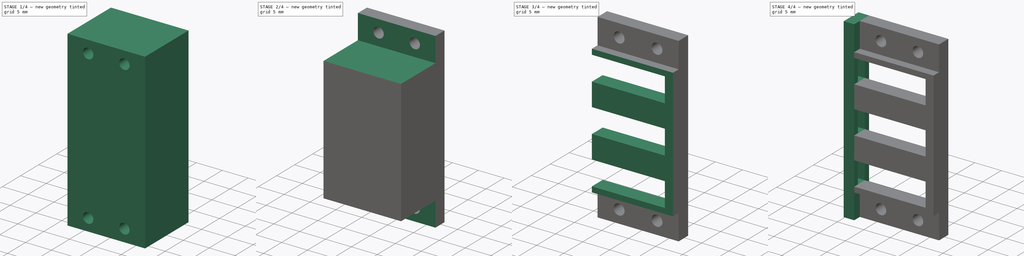
[diagram: build sequence overview — one tinted view per stage of 4, left to right]
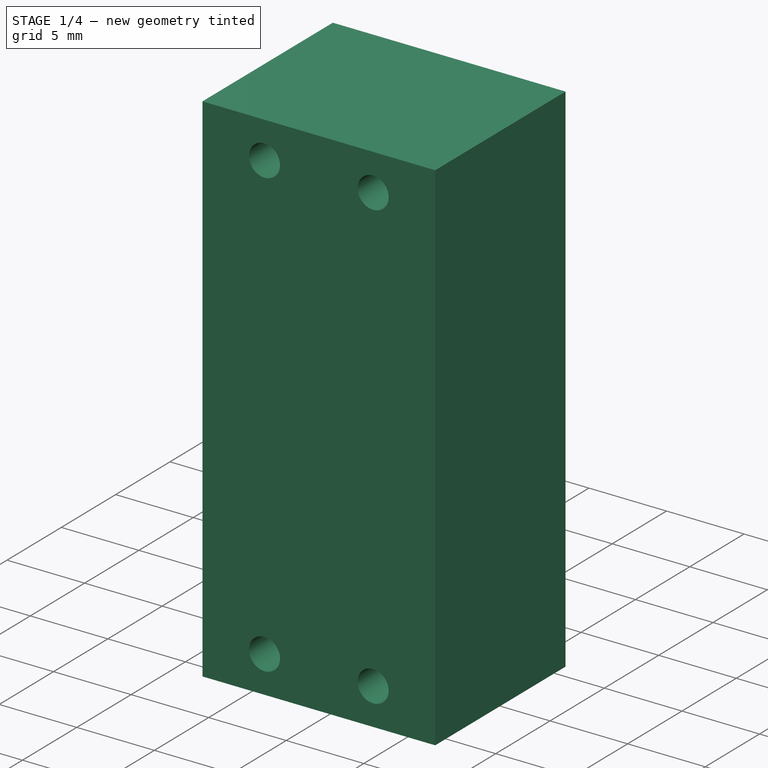
[diagram: stage 1 of 4 — iso view after this stage's code; geometry added in this stage tinted green]
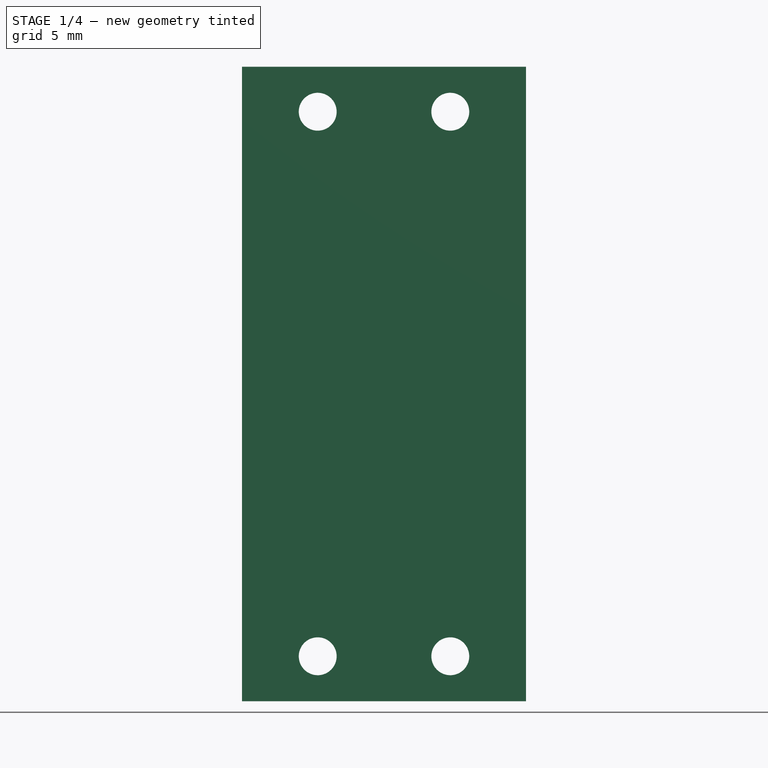
[diagram: stage 1 of 4 — front view after this stage's code; geometry added in this stage tinted green]
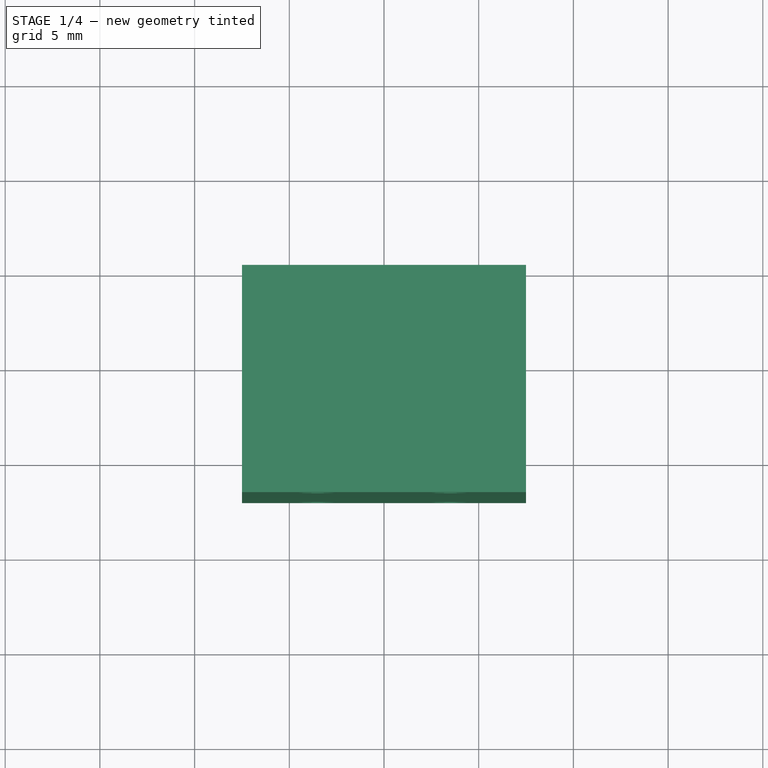
[diagram: stage 1 of 4 — top view after this stage's code; geometry added in this stage tinted green]
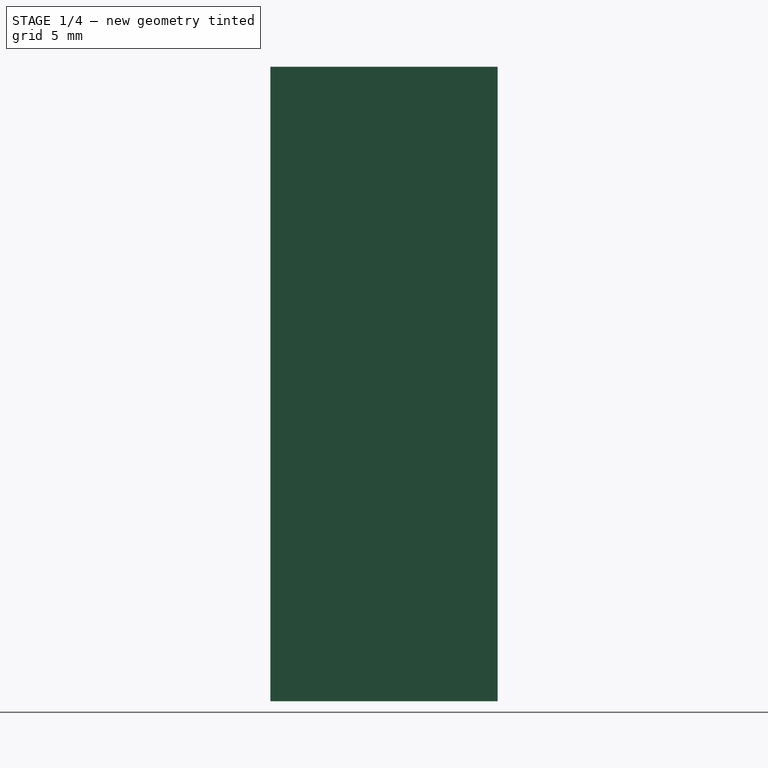
[diagram: stage 1 of 4 — right view after this stage's code; geometry added in this stage tinted green]
FCSTD DOCUMENT  (FreeCAD 0.21R33668 +26 (Git))
Label: cover_gripper
License: All rights reserved
LicenseURL: https://en.wikipedia.org/wiki/All_rights_reserved
objects: Sketcher::SketchObject×10, PartDesign::Pocket×8, PartDesign::Pad×2, PartDesign::Body×1
note: 31 computed .brp shape members not serialized (recipe doc carries the construction recipe); baked Part::Feature solids carry a one-line shape summary decoded from their .brp

FEATURE [Sketcher::SketchObject] Sketch
  FullyConstrained = true
  MapMode = 5
  Placement = pos=(0,0,0) rot=(1,0,0;1.5708rad)
  Support = -> [XZ_Plane]
  sketch-geometry (5):
    g0: LineSegment StartX=-7.5 StartY=16.75 StartZ=0 EndX=-7.5 EndY=-16.75 EndZ=0
    g1: LineSegment StartX=-7.5 StartY=-16.75 StartZ=0 EndX=7.5 EndY=-16.75 EndZ=0
    g2: LineSegment StartX=7.5 StartY=-16.75 StartZ=0 EndX=7.5 EndY=16.75 EndZ=0
    g3: LineSegment StartX=7.5 StartY=16.75 StartZ=0 EndX=-7.5 EndY=16.75 EndZ=0
    g4: GeomPoint X=0 Y=0 Z=0
  constraints (12):
    c: Coincident(g0,g1)
    c: Coincident(g1,g2)
    c: Coincident(g2,g3)
    c: Coincident(g3,g0)
    c: Horizontal(g1)
    c: Horizontal(g3)
    c: Vertical(g0)
    c: Vertical(g2)
    c: Symmetric(g1,g0,g4)
    c: Coincident(g4,g-1)
    c: DistanceX(g3,g3) = 15
    c: DistanceY(g0,g0) = 33.5
FEATURE [PartDesign::Pad] Pad
  Direction = (0,-1,2e-16)
  Length = 12
  Length2 = 10
  Placement = pos=(0,0,0) rot=(1,0,0;1.5708rad)
  Profile = -> Sketch
  ReferenceAxis = -> Sketch [N_Axis]
  Type = 0
FEATURE [Sketcher::SketchObject] Sketch001
  FullyConstrained = true
  MapMode = 5
  Placement = pos=(0,-12,2.7e-15) rot=(1,0,0;1.5708rad)
  Support = -> [Pad]
  sketch-geometry (4):
    g0: Circle CenterX=-3.5 CenterY=14.375 CenterZ=0 NormalX=0 NormalY=0 NormalZ=1 AngleXU=0 Radius=1
    g1: Circle CenterX=3.5 CenterY=14.375 CenterZ=0 NormalX=0 NormalY=0 NormalZ=1 AngleXU=0 Radius=1
    g2: Circle CenterX=-3.5 CenterY=-14.375 CenterZ=0 NormalX=0 NormalY=0 NormalZ=1 AngleXU=0 Radius=1
    g3: Circle CenterX=3.5 CenterY=-14.375 CenterZ=0 NormalX=0 NormalY=0 NormalZ=1 AngleXU=0 Radius=1
  constraints (12):
    c: Vertical(g0,g2)
    c: Vertical(g3,g1)
    c: Horizontal(g0,g1)
    c: Horizontal(g2,g3)
    c: Diameter(g1) = 2
    c: DistanceX(g0,g1) = 7
    c: DistanceX(g-1,g1) = 3.5
    c: Equal(g0,g1)
    c: Equal(g2,g0)
    c: Equal(g3,g1)
    c: DistanceY(g-1,g1) = 14.375
    c: DistanceY(g3,g1) = 28.75
FEATURE [PartDesign::Pocket] Pocket
  BaseFeature = -> Pad
  Direction = (0,1,-2e-16)
  Length = 5
  Length2 = 5
  Placement = pos=(0,0,0) rot=(1,0,0;1.5708rad)
  Profile = -> Sketch001
  ReferenceAxis = -> Sketch001 [N_Axis]
  Type = 1
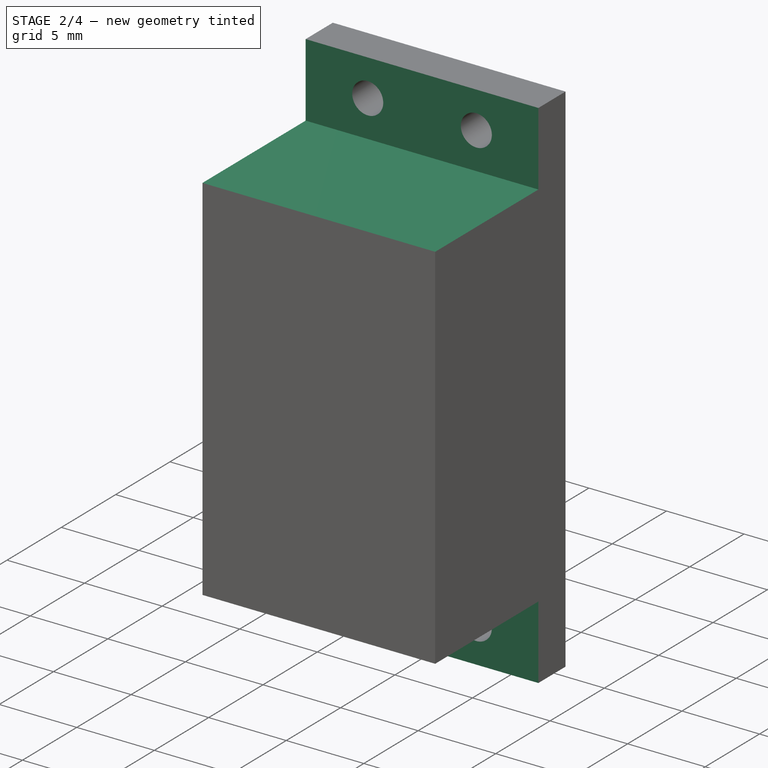
[diagram: stage 2 of 4 — iso view after this stage's code; geometry added in this stage tinted green]
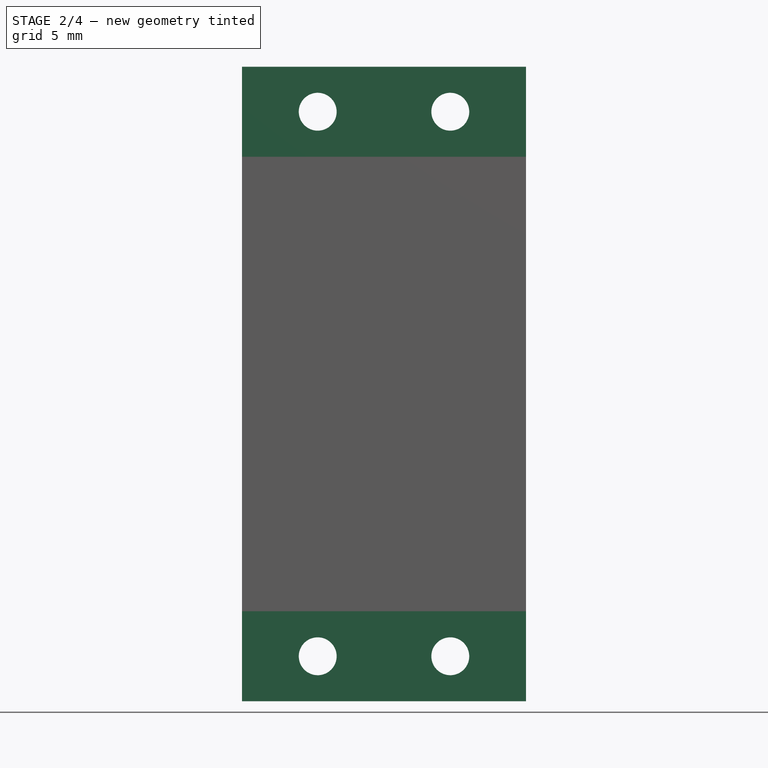
[diagram: stage 2 of 4 — front view after this stage's code; geometry added in this stage tinted green]
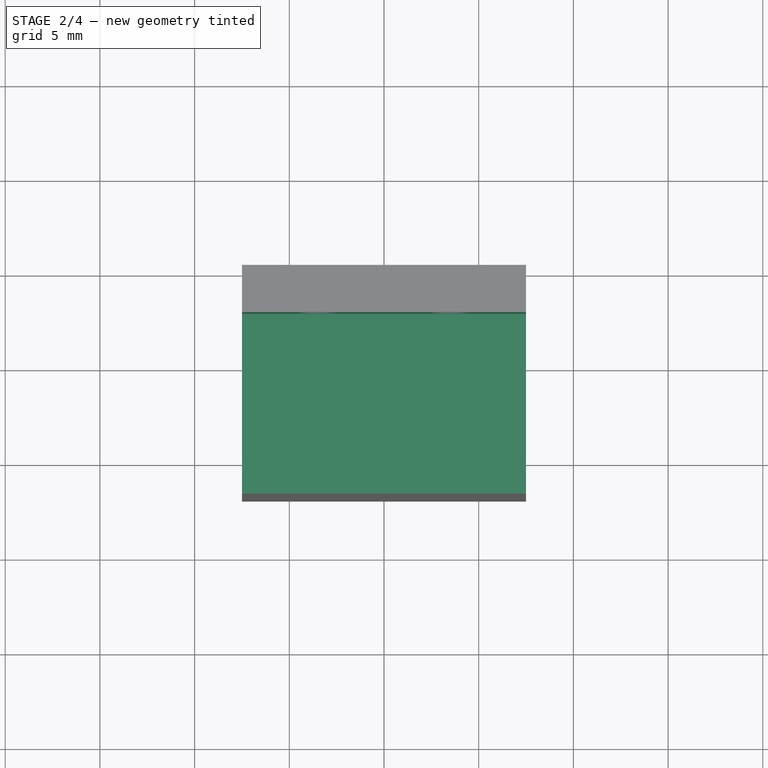
[diagram: stage 2 of 4 — top view after this stage's code; geometry added in this stage tinted green]
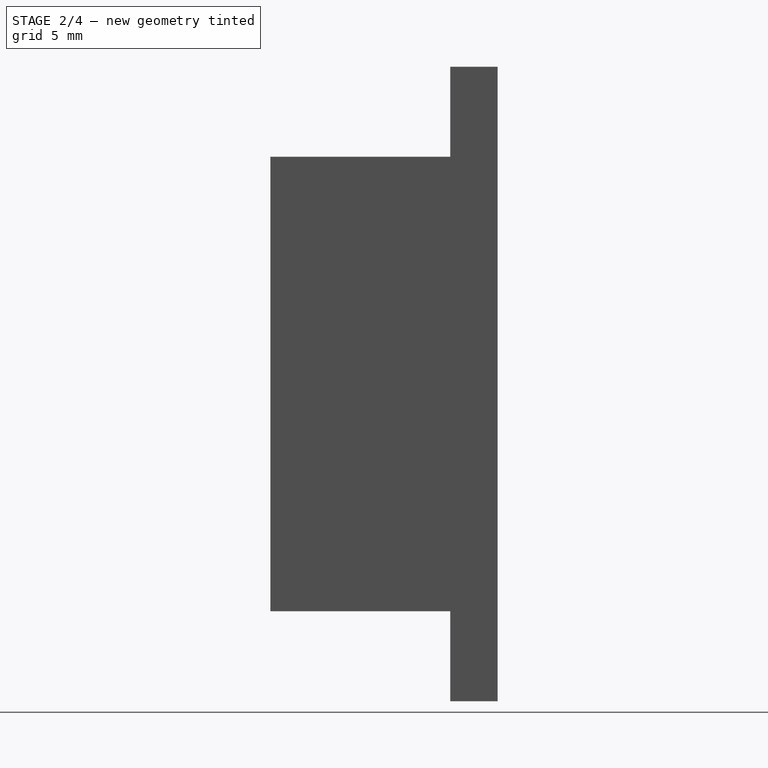
[diagram: stage 2 of 4 — right view after this stage's code; geometry added in this stage tinted green]
FEATURE [Sketcher::SketchObject] Sketch002
  ExternalGeometry = -> [Pocket]
  FullyConstrained = false
  MapMode = 5
  Placement = pos=(0,-12,2.7e-15) rot=(1,0,0;1.5708rad)
  Support = -> [Pocket]
  sketch-geometry (8):
    g0: LineSegment StartX=-12.2622 StartY=18.1505 StartZ=0 EndX=12.6698 EndY=18.1505 EndZ=0
    g1: LineSegment StartX=12.6698 StartY=18.1505 StartZ=0 EndX=12.6698 EndY=12 EndZ=0
    g2: LineSegment StartX=12.6698 StartY=12 StartZ=0 EndX=-12.2622 EndY=12 EndZ=0
    g3: LineSegment StartX=-12.2622 StartY=12 StartZ=0 EndX=-12.2622 EndY=18.1505 EndZ=0
    g4: LineSegment StartX=-11.9341 StartY=-12 StartZ=0 EndX=13.2165 EndY=-12 EndZ=0
    g5: LineSegment StartX=13.2165 StartY=-12 StartZ=0 EndX=13.2165 EndY=-18.154 EndZ=0
    g6: LineSegment StartX=13.2165 StartY=-18.154 StartZ=0 EndX=-11.9341 EndY=-18.154 EndZ=0
    g7: LineSegment StartX=-11.9341 StartY=-18.154 StartZ=0 EndX=-11.9341 EndY=-12 EndZ=0
  constraints (18):
    c: Coincident(g0,g1)
    c: Coincident(g1,g2)
    c: Coincident(g2,g3)
    c: Coincident(g3,g0)
    c: Horizontal(g0)
    c: Horizontal(g2)
    c: Vertical(g1)
    c: Vertical(g3)
    c: DistanceY(g1,g-4) = 4.75
    c: Coincident(g4,g5)
    c: Coincident(g5,g6)
    c: Coincident(g6,g7)
    c: Coincident(g7,g4)
    c: Horizontal(g4)
    c: Horizontal(g6)
    c: Vertical(g5)
    c: Vertical(g7)
    c: DistanceY(g-5,g4) = 4.75
FEATURE [PartDesign::Pocket] Pocket001
  BaseFeature = -> Pocket
  Direction = (0,1,-2e-16)
  Length = 9.5
  Length2 = 5
  Placement = pos=(0,0,0) rot=(1,0,0;1.5708rad)
  Profile = -> Sketch002
  ReferenceAxis = -> Sketch002 [N_Axis]
  Type = 0
FEATURE [Sketcher::SketchObject] Sketch003
  ExternalGeometry = -> [Pocket001]
  FullyConstrained = false
  MapMode = 5
  Placement = pos=(0,0,0) rot=(-1,0,0;1.5708rad)
  Support = -> [Pocket001]
  sketch-geometry (4):
    g0: LineSegment StartX=-11.6287 StartY=11.25 StartZ=0 EndX=5.5 EndY=11.25 EndZ=0
    g1: LineSegment StartX=5.5 StartY=11.25 StartZ=0 EndX=5.5 EndY=-11.25 EndZ=0
    g2: LineSegment StartX=5.5 StartY=-11.25 StartZ=0 EndX=-11.6287 EndY=-11.25 EndZ=0
    g3: LineSegment StartX=-11.6287 StartY=-11.25 StartZ=0 EndX=-11.6287 EndY=11.25 EndZ=0
  constraints (11):
    c: Coincident(g0,g1)
    c: Coincident(g1,g2)
    c: Coincident(g2,g3)
    c: Coincident(g3,g0)
    c: Horizontal(g0)
    c: Horizontal(g2)
    c: Vertical(g1)
    c: Vertical(g3)
    c: DistanceX(g0,g-3) = 2
    c: DistanceY(g0,g-3) = 5.5
    c: DistanceY(g-3,g1) = 5.5
FEATURE [PartDesign::Pocket] Pocket002
  BaseFeature = -> Pocket001
  Direction = (0,-1,2e-16)
  Length = 1
  Length2 = 5
  Placement = pos=(0,0,0) rot=(1,0,0;1.5708rad)
  Profile = -> Sketch003
  ReferenceAxis = -> Sketch003 [N_Axis]
  Type = 0
FEATURE [Sketcher::SketchObject] Sketch004
  ExternalGeometry = -> [Pocket002]
  FullyConstrained = false
  MapMode = 5
  Placement = pos=(0,0,0) rot=(-1,0,0;1.5708rad)
  Support = -> [Pocket002]
  sketch-geometry (4):
    g0: LineSegment StartX=-14.2258 StartY=12.45 StartZ=0 EndX=6.7 EndY=12.45 EndZ=0
    g1: LineSegment StartX=6.7 StartY=12.45 StartZ=0 EndX=6.7 EndY=-12.45 EndZ=0
    g2: LineSegment StartX=6.7 StartY=-12.45 StartZ=0 EndX=-14.2258 EndY=-12.45 EndZ=0
    g3: LineSegment StartX=-14.2258 StartY=-12.45 StartZ=0 EndX=-14.2258 EndY=12.45 EndZ=0
  constraints (11):
    c: Coincident(g0,g1)
    c: Coincident(g1,g2)
    c: Coincident(g2,g3)
    c: Coincident(g3,g0)
    c: Horizontal(g0)
    c: Horizontal(g2)
    c: Vertical(g1)
    c: Vertical(g3)
    c: DistanceY(g1,g-5) = 1.2
    c: DistanceY(g-4,g0) = 1.2
    c: DistanceX(g-4,g0) = 1.2
FEATURE [PartDesign::Pocket] Pocket003
  BaseFeature = -> Pocket002
  Direction = (0,-1,2e-16)
  Length = 0.5
  Length2 = 5
  Placement = pos=(0,0,0) rot=(1,0,0;1.5708rad)
  Profile = -> Sketch004
  ReferenceAxis = -> Sketch004 [N_Axis]
  Type = 0
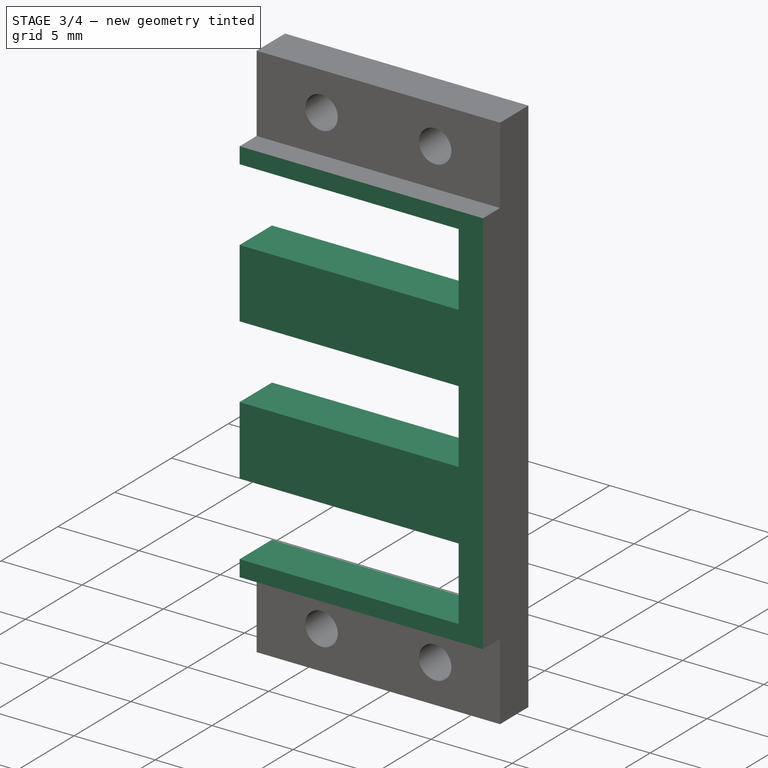
[diagram: stage 3 of 4 — iso view after this stage's code; geometry added in this stage tinted green]
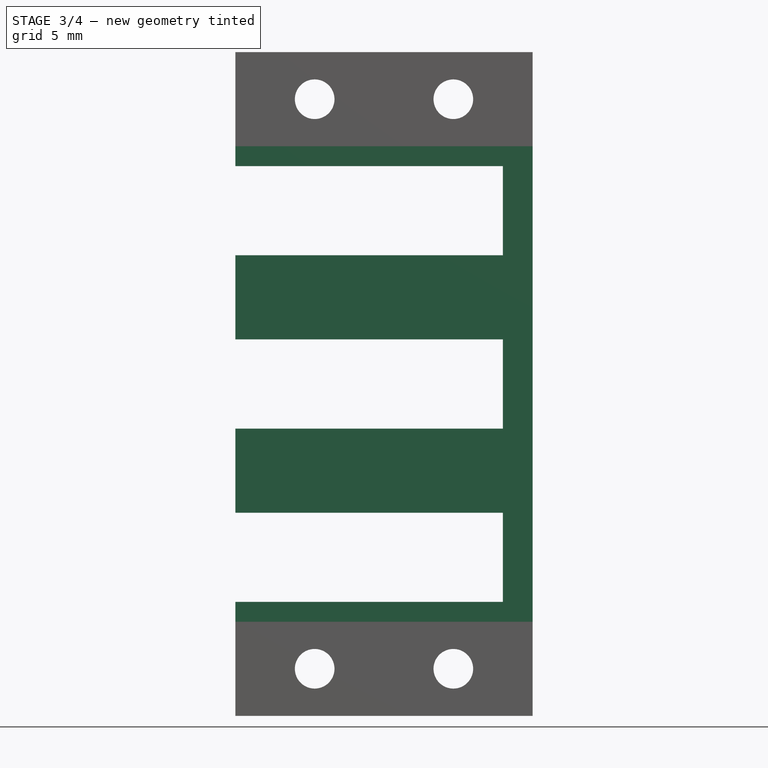
[diagram: stage 3 of 4 — front view after this stage's code; geometry added in this stage tinted green]
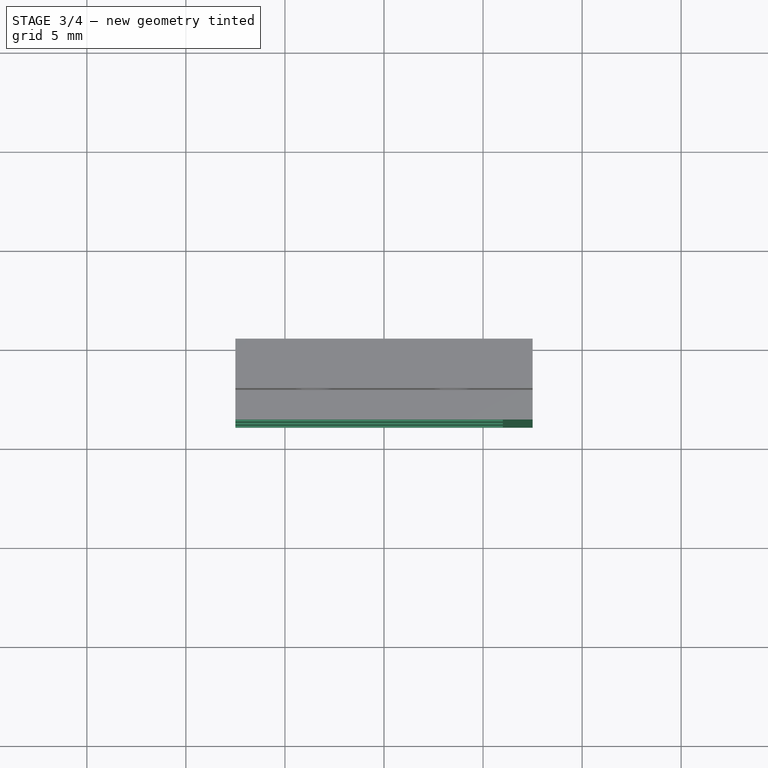
[diagram: stage 3 of 4 — top view after this stage's code; geometry added in this stage tinted green]
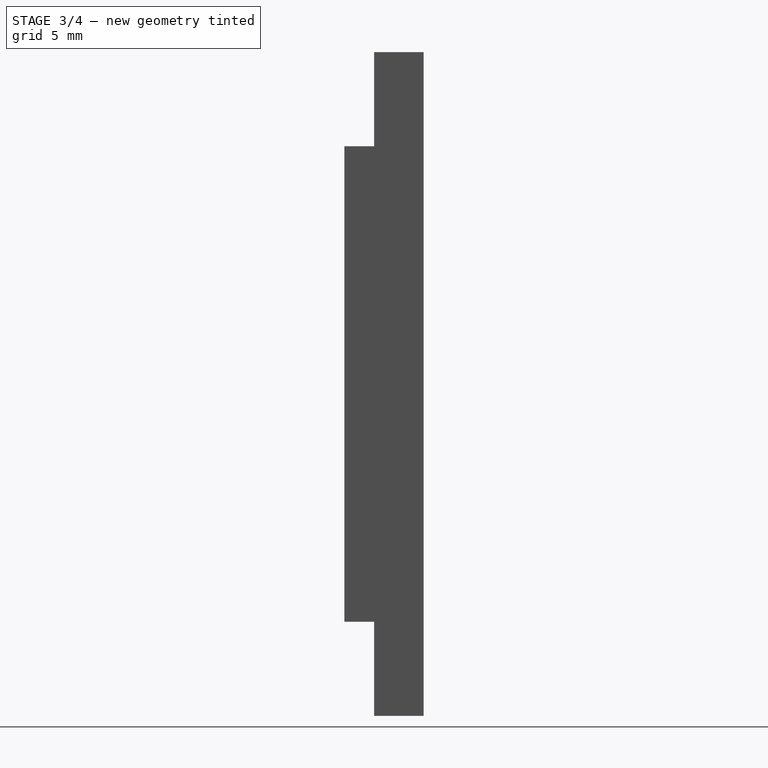
[diagram: stage 3 of 4 — right view after this stage's code; geometry added in this stage tinted green]
FEATURE [Sketcher::SketchObject] Sketch005
  ExternalGeometry = -> [Pocket003]
  FullyConstrained = false
  MapMode = 5
  Placement = pos=(-7.5,0,0) rot=(0.707107,0,-0.707107;3.14159rad)
  Support = -> [Pocket003]
  sketch-geometry (4):
    g0: LineSegment StartX=-14.0027 StartY=13.957 StartZ=0 EndX=15.0204 EndY=13.957 EndZ=0
    g1: LineSegment StartX=15.0204 StartY=13.957 StartZ=0 EndX=15.0204 EndY=4 EndZ=0
    g2: LineSegment StartX=15.0204 StartY=4 StartZ=0 EndX=-14.0027 EndY=4 EndZ=0
    g3: LineSegment StartX=-14.0027 StartY=4 StartZ=0 EndX=-14.0027 EndY=13.957 EndZ=0
  constraints (9):
    c: Coincident(g0,g1)
    c: Coincident(g1,g2)
    c: Coincident(g2,g3)
    c: Coincident(g3,g0)
    c: Horizontal(g0)
    c: Horizontal(g2)
    c: Vertical(g1)
    c: Vertical(g3)
    c: DistanceY(g-5,g1) = 1.5
FEATURE [PartDesign::Pocket] Pocket004
  BaseFeature = -> Pocket003
  Direction = (1,0,2e-16)
  Length = 5
  Length2 = 5
  Placement = pos=(0,0,0) rot=(1,0,0;1.5708rad)
  Profile = -> Sketch005
  ReferenceAxis = -> Sketch005 [N_Axis]
  Type = 1
FEATURE [Sketcher::SketchObject] Sketch006
  ExternalGeometry = -> [Pocket004]
  FullyConstrained = false
  MapMode = 5
  Placement = pos=(-7.5,0,0) rot=(0.707107,0,-0.707107;3.14159rad)
  Support = -> [Pocket004]
  sketch-geometry (4):
    g0: LineSegment StartX=-12.45 StartY=1.15 StartZ=0 EndX=12.45 EndY=1.15 EndZ=0
    g1: LineSegment StartX=12.45 StartY=1.15 StartZ=0 EndX=12.45 EndY=-3.13204 EndZ=0
    g2: LineSegment StartX=12.45 StartY=-3.13204 StartZ=0 EndX=-12.45 EndY=-3.13204 EndZ=0
    g3: LineSegment StartX=-12.45 StartY=-3.13204 StartZ=0 EndX=-12.45 EndY=1.15 EndZ=0
  constraints (11):
    c: Coincident(g0,g1)
    c: Coincident(g1,g2)
    c: Coincident(g2,g3)
    c: Coincident(g3,g0)
    c: Horizontal(g0)
    c: Horizontal(g2)
    c: Vertical(g1)
    c: Vertical(g3)
    c: Vertical(g-4,g0)
    c: Vertical(g-3,g0)
    c: DistanceY(g-3,g0) = 1.15
FEATURE [PartDesign::Pocket] Pocket005
  BaseFeature = -> Pocket004
  Direction = (1,0,2e-16)
  Length = 0
  Length2 = 5
  Placement = pos=(0,0,0) rot=(1,0,0;1.5708rad)
  Profile = -> Sketch006
  ReferenceAxis = -> Sketch006 [N_Axis]
  Type = 3
  UpToFace = -> Pocket004 [Face16]
FEATURE [Sketcher::SketchObject] Sketch007
  FullyConstrained = false
  MapMode = 5
  Placement = pos=(0,-1.15,0) rot=(-1,0,0;1.5708rad)
  Support = -> [Pocket005]
  sketch-geometry (12):
    g0: LineSegment StartX=-9.38341 StartY=11 StartZ=0 EndX=6 EndY=11 EndZ=0
    g1: LineSegment StartX=6 StartY=11 StartZ=0 EndX=6 EndY=6.5 EndZ=0
    g2: LineSegment StartX=6 StartY=6.5 StartZ=0 EndX=-9.38341 EndY=6.5 EndZ=0
    g3: LineSegment StartX=-9.38341 StartY=6.5 StartZ=0 EndX=-9.38341 EndY=11 EndZ=0
    g4: LineSegment StartX=-9.38341 StartY=2.25 StartZ=0 EndX=6 EndY=2.25 EndZ=0
    g5: LineSegment StartX=6 StartY=2.25 StartZ=0 EndX=6 EndY=-2.25 EndZ=0
    g6: LineSegment StartX=6 StartY=-2.25 StartZ=0 EndX=-9.38341 EndY=-2.25 EndZ=0
    g7: LineSegment StartX=-9.38341 StartY=-2.25 StartZ=0 EndX=-9.38341 EndY=2.25 EndZ=0
    g8: LineSegment StartX=-9.38341 StartY=-6.5 StartZ=0 EndX=6 EndY=-6.5 EndZ=0
    g9: LineSegment StartX=6 StartY=-6.5 StartZ=0 EndX=6 EndY=-11 EndZ=0
    g10: LineSegment StartX=6 StartY=-11 StartZ=0 EndX=-9.38341 EndY=-11 EndZ=0
    g11: LineSegment StartX=-9.38341 StartY=-11 StartZ=0 EndX=-9.38341 EndY=-6.5 EndZ=0
  constraints (35):
    c: Coincident(g0,g1)
    c: Coincident(g1,g2)
    c: Coincident(g2,g3)
    c: Coincident(g3,g0)
    c: Horizontal(g0)
    c: Horizontal(g2)
    c: Vertical(g1)
    c: Vertical(g3)
    c: Coincident(g4,g5)
    c: Coincident(g5,g6)
    c: Coincident(g6,g7)
    c: Coincident(g7,g4)
    c: Horizontal(g4)
    c: Horizontal(g6)
    c: Vertical(g5)
    c: Vertical(g7)
    c: Coincident(g8,g9)
    c: Coincident(g9,g10)
    c: Coincident(g10,g11)
    c: Coincident(g11,g8)
    c: Horizontal(g8)
    c: Horizontal(g10)
    c: Vertical(g9)
    c: Vertical(g11)
    c: DistanceY(g3,g3) = 4.5
    c: DistanceY(g7,g7) = 4.5
    c: DistanceY(g11,g11) = 4.5
    c: DistanceY(g4,g2) = 4.25
    c: DistanceY(g8,g6) = 4.25
    c: DistanceY(g5,g-1) = 2.25
    c: Vertical(g1,g4)
    c: Vertical(g5,g8)
    c: Vertical(g6,g2)
    c: Vertical(g8,g6)
    c: DistanceX(g-1,g5) = 6
FEATURE [PartDesign::Pocket] Pocket006
  BaseFeature = -> Pocket005
  Direction = (0,-1,-2e-16)
  Length = 5
  Length2 = 5
  Placement = pos=(0,0,0) rot=(1,0,0;1.5708rad)
  Profile = -> Sketch007
  ReferenceAxis = -> Sketch007 [N_Axis]
  Type = 1
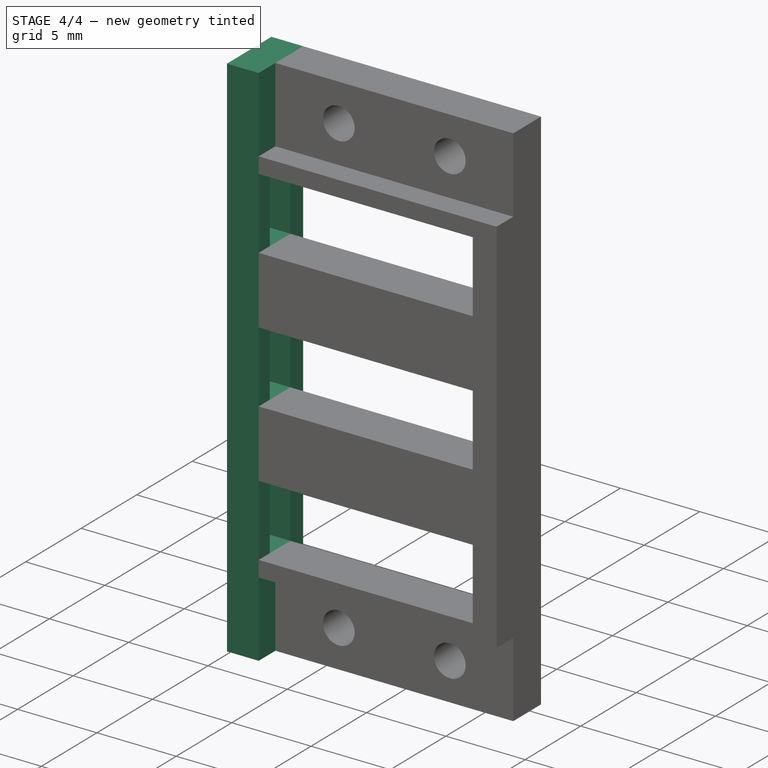
[diagram: stage 4 of 4 — iso view after this stage's code; geometry added in this stage tinted green]
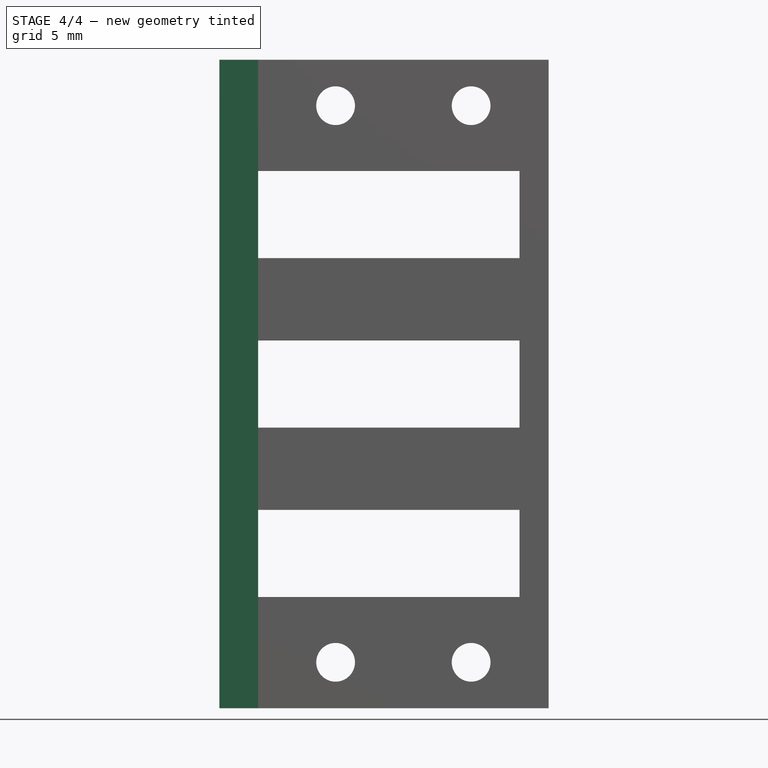
[diagram: stage 4 of 4 — front view after this stage's code; geometry added in this stage tinted green]
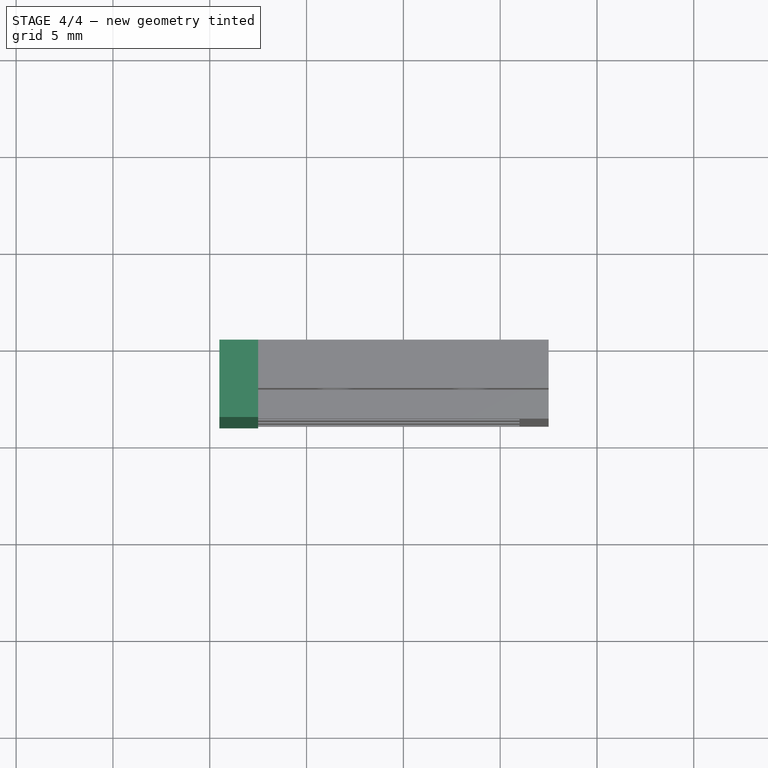
[diagram: stage 4 of 4 — top view after this stage's code; geometry added in this stage tinted green]
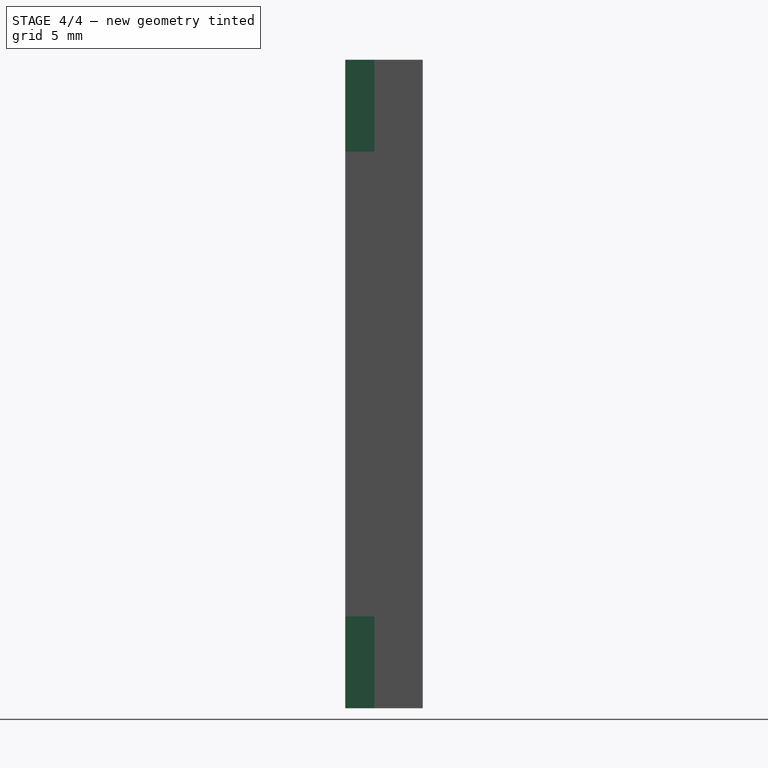
[diagram: stage 4 of 4 — right view after this stage's code; geometry added in this stage tinted green]
FEATURE [Sketcher::SketchObject] Sketch008
  ExternalGeometry = -> [Pocket006]
  FullyConstrained = true
  MapMode = 5
  Placement = pos=(-7.5,0,0) rot=(0.707107,0,-0.707107;3.14159rad)
  Support = -> [Pocket006]
  sketch-geometry (4):
    g0: LineSegment StartX=-16.75 StartY=4 StartZ=0 EndX=16.75 EndY=4 EndZ=0
    g1: LineSegment StartX=16.75 StartY=4 StartZ=0 EndX=16.75 EndY=0 EndZ=0
    g2: LineSegment StartX=16.75 StartY=0 StartZ=0 EndX=-16.75 EndY=0 EndZ=0
    g3: LineSegment StartX=-16.75 StartY=0 StartZ=0 EndX=-16.75 EndY=4 EndZ=0
  constraints (11):
    c: Coincident(g0,g1)
    c: Coincident(g1,g2)
    c: Coincident(g2,g3)
    c: Coincident(g3,g0)
    c: Horizontal(g0)
    c: Horizontal(g2)
    c: Vertical(g1)
    c: Vertical(g3)
    c: Coincident(g1,g-5)
    c: Vertical(g0,g-3)
    c: Horizontal(g0,g-4)
FEATURE [PartDesign::Pad] Pad001
  BaseFeature = -> Pocket006
  Direction = (-1,0,-2e-16)
  Length = 2
  Length2 = 10
  Placement = pos=(0,0,0) rot=(1,0,0;1.5708rad)
  Profile = -> Sketch008
  ReferenceAxis = -> Sketch008 [N_Axis]
  Type = 0
FEATURE [Sketcher::SketchObject] Sketch009
  ExternalGeometry = -> [Pad001]
  FullyConstrained = true
  MapMode = 5
  Placement = pos=(-9.5,0,-2e-15) rot=(0.707107,0,-0.707107;3.14159rad)
  Support = -> [Pad001]
  sketch-geometry (12):
    g0: LineSegment StartX=-11 StartY=3 StartZ=0 EndX=-6.5 EndY=3 EndZ=0
    g1: LineSegment StartX=-6.5 StartY=3 StartZ=0 EndX=-6.5 EndY=1.15 EndZ=0
    g2: LineSegment StartX=-6.5 StartY=1.15 StartZ=0 EndX=-11 EndY=1.15 EndZ=0
    g3: LineSegment StartX=-11 StartY=1.15 StartZ=0 EndX=-11 EndY=3 EndZ=0
    g4: LineSegment StartX=-2.25 StartY=3 StartZ=0 EndX=2.25 EndY=3 EndZ=0
    g5: LineSegment StartX=2.25 StartY=3 StartZ=0 EndX=2.25 EndY=1.15 EndZ=0
    g6: LineSegment StartX=2.25 StartY=1.15 StartZ=0 EndX=-2.25 EndY=1.15 EndZ=0
    g7: LineSegment StartX=-2.25 StartY=1.15 StartZ=0 EndX=-2.25 EndY=3 EndZ=0
    g8: LineSegment StartX=6.5 StartY=3 StartZ=0 EndX=11 EndY=3 EndZ=0
    g9: LineSegment StartX=11 StartY=3 StartZ=0 EndX=11 EndY=1.15 EndZ=0
    g10: LineSegment StartX=11 StartY=1.15 StartZ=0 EndX=6.5 EndY=1.15 EndZ=0
    g11: LineSegment StartX=6.5 StartY=1.15 StartZ=0 EndX=6.5 EndY=3 EndZ=0
  constraints (36):
    c: Coincident(g0,g1)
    c: Coincident(g1,g2)
    c: Coincident(g2,g3)
    c: Coincident(g3,g0)
    c: Horizontal(g0)
    c: Horizontal(g2)
    c: Vertical(g1)
    c: Vertical(g3)
    c: PointOnObject(g0,g-4)
    c: Coincident(g4,g5)
    c: Coincident(g5,g6)
    c: Coincident(g6,g7)
    c: Coincident(g7,g4)
    c: Horizontal(g4)
    c: Horizontal(g6)
    c: Vertical(g5)
    c: Vertical(g7)
    c: Coincident(g8,g9)
    c: Coincident(g9,g10)
    c: Coincident(g10,g11)
    c: Coincident(g11,g8)
    c: Horizontal(g8)
    c: Horizontal(g10)
    c: Vertical(g9)
    c: Vertical(g11)
    c: Horizontal(g1,g-3)
    c: Horizontal(g6,g-5)
    c: Horizontal(g10,g5)
    c: Horizontal(g0,g4)
    c: Horizontal(g8,g4)
    c: Vertical(g0,g-3)
    c: Vertical(g4,g-5)
    c: Vertical(g4,g-6)
    c: Vertical(g8,g-8)
    c: Vertical(g8,g-7)
    c: DistanceY(g8,g-8) = 1
FEATURE [PartDesign::Pocket] Pocket007
  BaseFeature = -> Pad001
  Direction = (1,0,2e-16)
  Length = 5
  Length2 = 5
  Placement = pos=(0,0,0) rot=(1,0,0;1.5708rad)
  Profile = -> Sketch009
  ReferenceAxis = -> Sketch009 [N_Axis]
  Type = 2
FEATURE [PartDesign::Body] Body
  Group = -> [Sketch,Pad,Sketch001,Pocket,Sketch002,Pocket001,Sketch003,Pocket002,Sketch004,Pocket003,Sketch005,Pocket004,Sketch006,Pocket005,Sketch007,Pocket006,Sketch008,Pad001,Sketch009,Pocket007]
  Origin = -> Origin
  Tip = -> Pocket007
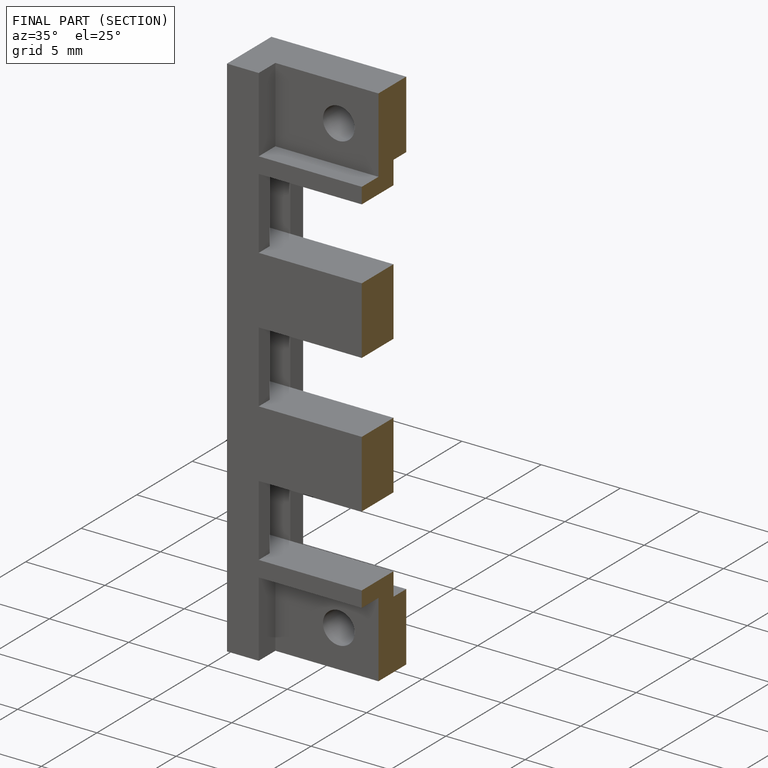
[diagram: finished part — half-section view (interior)]
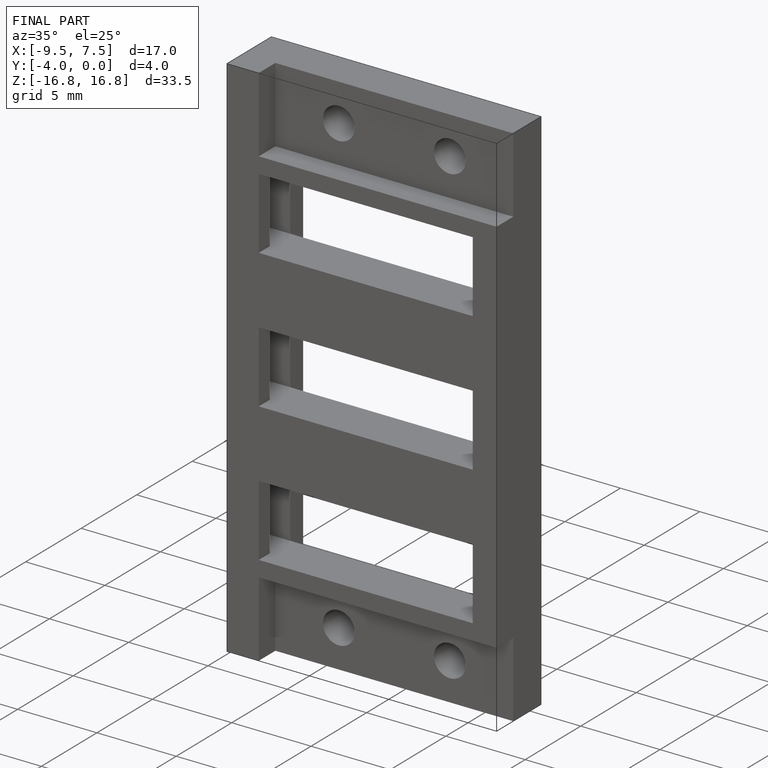
[diagram: finished part — iso view with bounding-box wireframe]
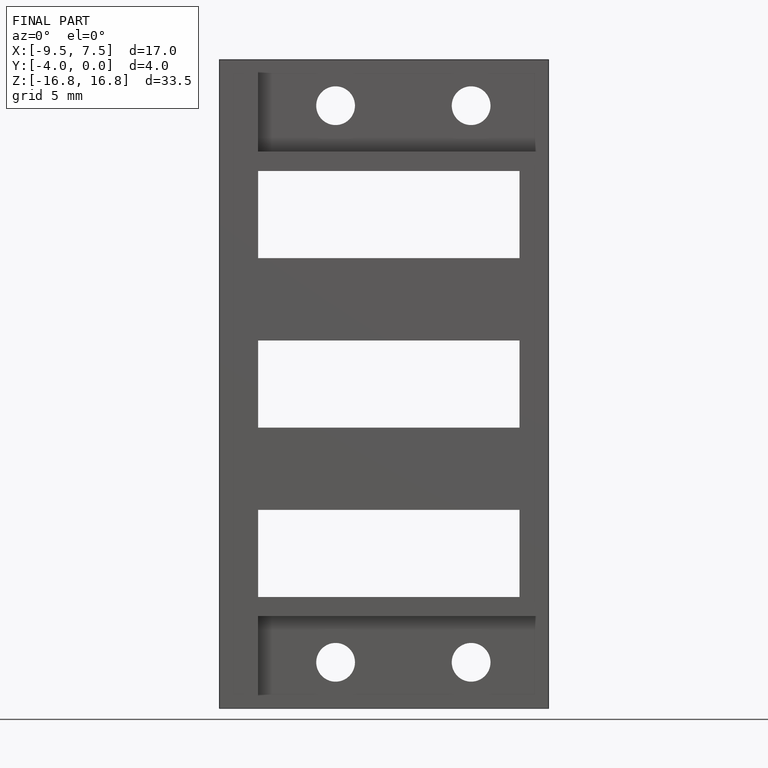
[diagram: finished part — front view with bounding-box wireframe]
